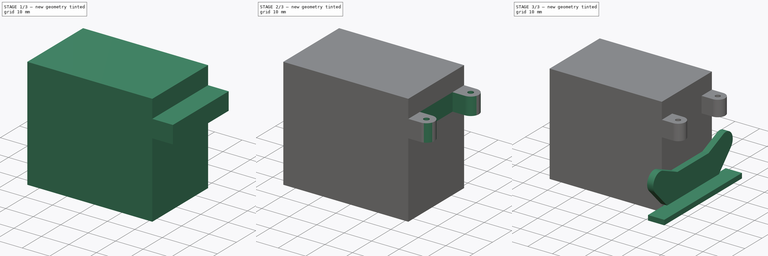
[diagram: build sequence overview — one tinted view per stage of 3, left to right]
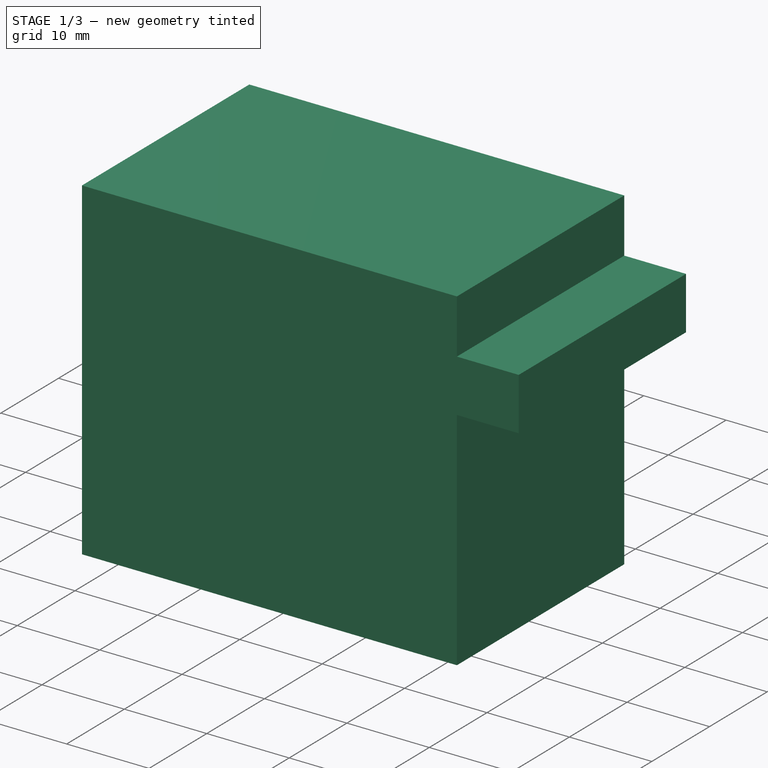
[diagram: stage 1 of 3 — iso view after this stage's code; geometry added in this stage tinted green]
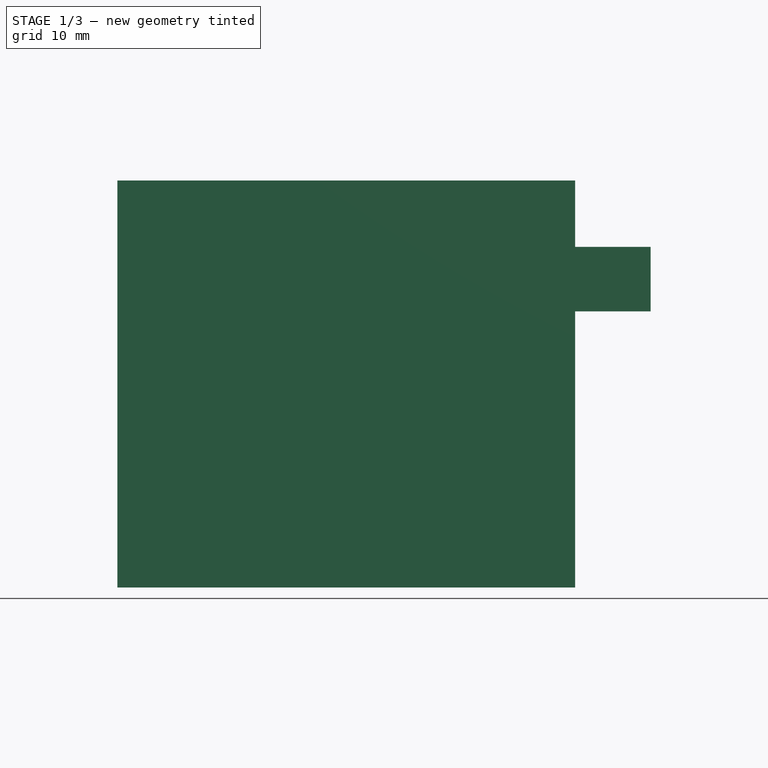
[diagram: stage 1 of 3 — front view after this stage's code; geometry added in this stage tinted green]
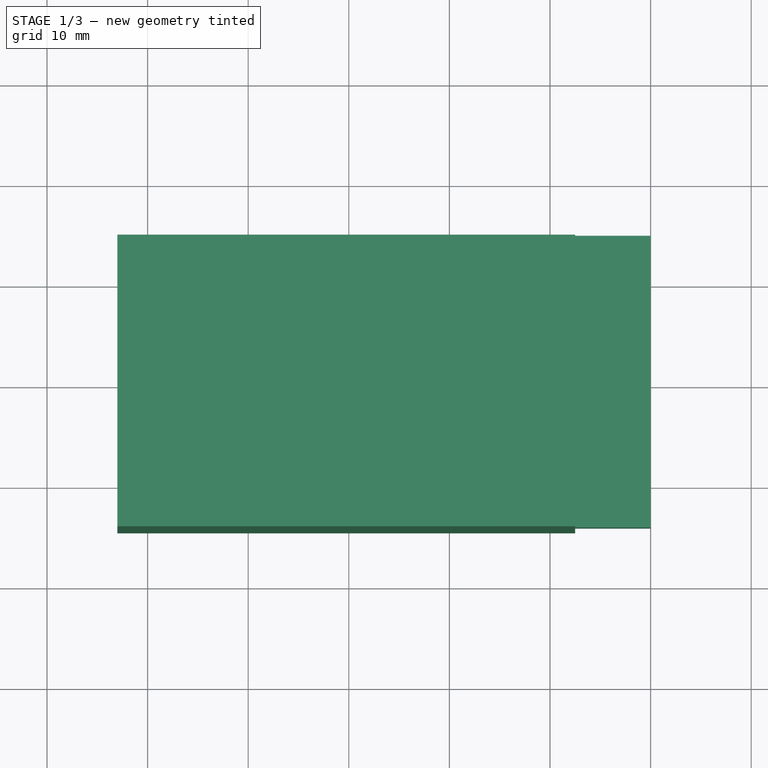
[diagram: stage 1 of 3 — top view after this stage's code; geometry added in this stage tinted green]
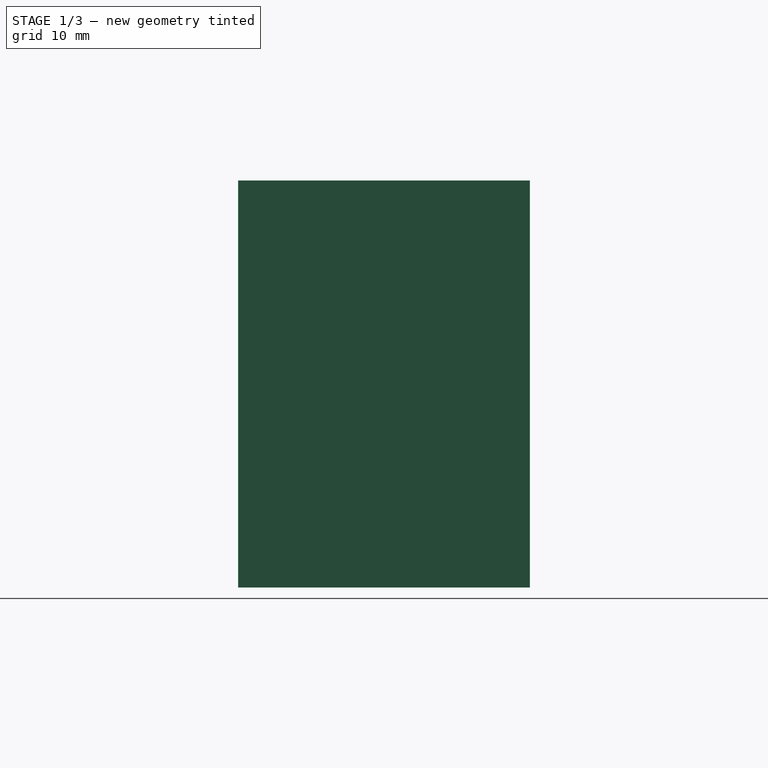
[diagram: stage 1 of 3 — right view after this stage's code; geometry added in this stage tinted green]
FCSTD DOCUMENT  (FreeCAD 0.15R4671 (Git))
Label: getriebeblock
License: All rights reserved
LicenseURL: http://en.wikipedia.org/wiki/All_rights_reserved
objects: Sketcher::SketchObject×5, PartDesign::Pad×3, PartDesign::Pocket×2
note: 15 computed .brp shape members not serialized (recipe doc carries the construction recipe); baked Part::Feature solids carry a one-line shape summary decoded from their .brp

FEATURE [Sketcher::SketchObject] Sketch
  sketch-geometry (4):
    g0: LineSegment StartX=-53 StartY=14.5 StartZ=0 EndX=0 EndY=14.5 EndZ=0
    g1: LineSegment StartX=0 StartY=14.5 StartZ=0 EndX=0 EndY=-14.5 EndZ=0
    g2: LineSegment StartX=0 StartY=-14.5 StartZ=0 EndX=-53 EndY=-14.5 EndZ=0
    g3: LineSegment StartX=-53 StartY=-14.5 StartZ=0 EndX=-53 EndY=14.5 EndZ=0
  constraints (12):
    c: Coincident(g0,g1)
    c: Coincident(g1,g2)
    c: Coincident(g2,g3)
    c: Coincident(g3,g0)
    c: Horizontal(g0)
    c: Horizontal(g2)
    c: Vertical(g1)
    c: Vertical(g3)
    c: Distance(g3) = 29
    c: Symmetric(g0,g2,g-1)
    c: Distance(g0) = 53
    c: PointOnObject(g-1,g1)
FEATURE [PartDesign::Pad] Pad
  Length = 40.45
  Length2 = 100
  Sketch = -> Sketch
  Type = 0
FEATURE [Sketcher::SketchObject] Sketch001
  ExternalGeometry = -> [Pad]
  Placement = pos=(0,0,0) rot=(0.57735,0.57735,0.57735;2.0944rad)
  Support = -> Pad [Face2]
  sketch-geometry (8):
    g0: LineSegment StartX=-14.5 StartY=40.45 StartZ=0 EndX=14.5 EndY=40.45 EndZ=0
    g1: LineSegment StartX=14.5 StartY=40.45 StartZ=0 EndX=14.5 EndY=33.85 EndZ=0
    g2: LineSegment StartX=14.5 StartY=33.85 StartZ=0 EndX=-14.5 EndY=33.85 EndZ=0
    g3: LineSegment StartX=-14.5 StartY=33.85 StartZ=0 EndX=-14.5 EndY=40.45 EndZ=0
    g4: LineSegment StartX=-14.5 StartY=27.45 StartZ=0 EndX=14.5 EndY=27.45 EndZ=0
    g5: LineSegment StartX=14.5 StartY=27.45 StartZ=0 EndX=14.5 EndY=0 EndZ=0
    g6: LineSegment StartX=14.5 StartY=0 StartZ=0 EndX=-14.5 EndY=0 EndZ=0
    g7: LineSegment StartX=-14.5 StartY=0 StartZ=0 EndX=-14.5 EndY=27.45 EndZ=0
  constraints (21):
    c: Coincident(g0,g1)
    c: Coincident(g1,g2)
    c: Coincident(g2,g3)
    c: Coincident(g3,g0)
    c: Horizontal(g0)
    c: Horizontal(g2)
    c: Vertical(g1)
    c: Vertical(g3)
    c: Coincident(g0,g-3)
    c: Coincident(g0,g-4)
    c: Distance(g1) = 6.6
    c: Coincident(g4,g5)
    c: Coincident(g5,g6)
    c: Coincident(g6,g7)
    c: Coincident(g7,g4)
    c: Horizontal(g4)
    c: Horizontal(g6)
    c: Vertical(g5)
    c: Vertical(g7)
    c: DistanceY(g4,g5) = -27.45
    c: Coincident(g-5,g6)
FEATURE [PartDesign::Pocket] Pocket
  Length = 7.5
  Sketch = -> Sketch001
  Type = 0
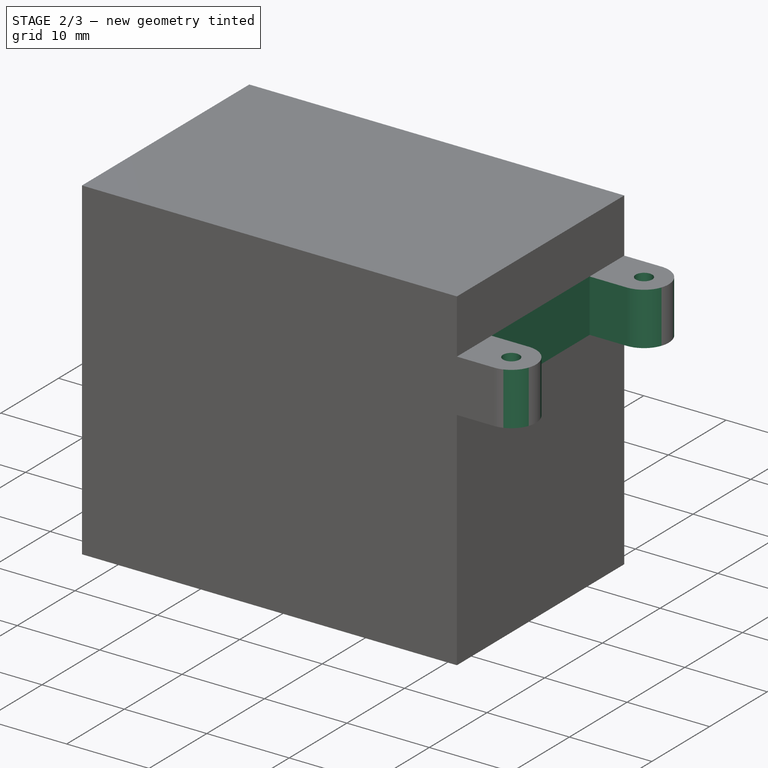
[diagram: stage 2 of 3 — iso view after this stage's code; geometry added in this stage tinted green]
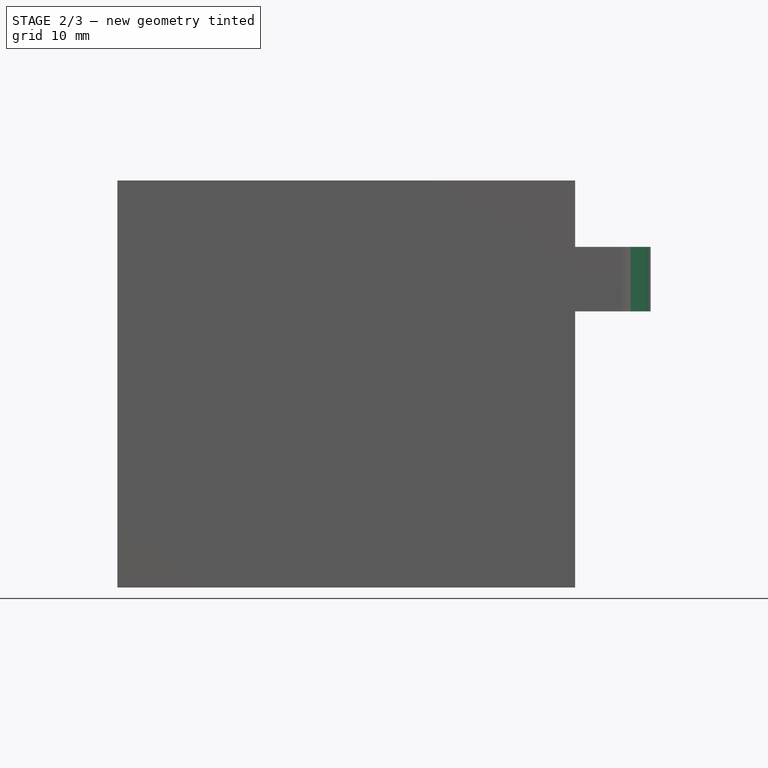
[diagram: stage 2 of 3 — front view after this stage's code; geometry added in this stage tinted green]
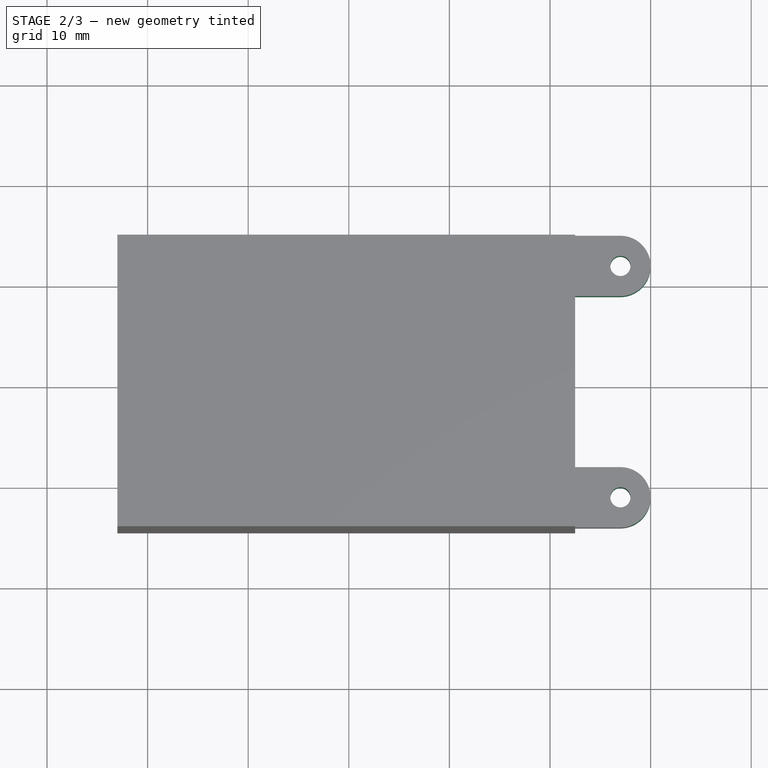
[diagram: stage 2 of 3 — top view after this stage's code; geometry added in this stage tinted green]
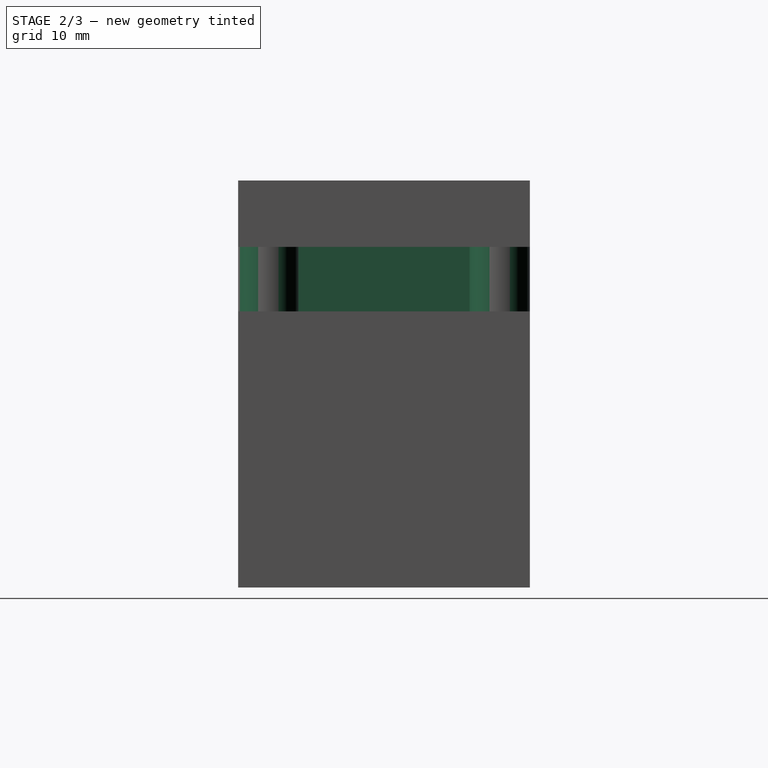
[diagram: stage 2 of 3 — right view after this stage's code; geometry added in this stage tinted green]
FEATURE [Sketcher::SketchObject] Sketch002
  ExternalGeometry = -> [Pocket]
  Placement = pos=(0,0,33.85) rot=(0,0,1;0rad)
  Support = -> Pocket [Face6]
  sketch-geometry (10):
    g0: LineSegment StartX=-3 StartY=8.5 StartZ=0 EndX=-7.5 EndY=8.5 EndZ=0
    g1: LineSegment StartX=-7.5 StartY=8.5 StartZ=0 EndX=-7.5 EndY=-8.5 EndZ=0
    g2: LineSegment StartX=-7.5 StartY=-8.5 StartZ=0 EndX=-3 EndY=-8.5 EndZ=0
    g3: ArcOfCircle CenterX=-3 CenterY=-11.5 CenterZ=0 NormalX=0 NormalY=0 NormalZ=1 Radius=3 StartAngle=4.71239 EndAngle=7.85398
    g4: LineSegment StartX=-3 StartY=-14.5 StartZ=0 EndX=2 EndY=-14.5 EndZ=0
    g5: LineSegment StartX=2 StartY=-14.5 StartZ=0 EndX=2 EndY=14.5 EndZ=0
    g6: LineSegment StartX=2 StartY=14.5 StartZ=0 EndX=-3 EndY=14.5 EndZ=0
    g7: ArcOfCircle CenterX=-3 CenterY=11.5 CenterZ=0 NormalX=0 NormalY=0 NormalZ=1 Radius=3 StartAngle=4.71239 EndAngle=7.85398
    g8: Circle CenterX=-3 CenterY=-11.5 CenterZ=0 NormalX=0 NormalY=0 NormalZ=1 Radius=1
    g9: Circle CenterX=-3 CenterY=11.5 CenterZ=0 NormalX=0 NormalY=0 NormalZ=1 Radius=1
  constraints (30):
    c: Coincident(g0,g1)
    c: Coincident(g1,g2)
    c: Horizontal(g0)
    c: Horizontal(g2)
    c: Vertical(g1)
    c: Radius(g3) = 3
    c: Symmetric(g3,g3,g3)
    c: Coincident(g4,g5)
    c: Coincident(g5,g6)
    c: Coincident(g4,g3)
    c: Coincident(g3,g2)
    c: Symmetric(g7,g7,g7)
    c: Radius(g7) = 3
    c: Coincident(g7,g6)
    c: Coincident(g7,g0)
    c: Horizontal(g6)
    c: Vertical(g5)
    c: Horizontal(g4)
    c: DistanceX(g4) = 5
    c: Equal(g6,g4)
    c: Equal(g2,g0)
    c: PointOnObject(g0,g-5)
    c: Symmetric(g0,g1,g-1)
    c: PointOnObject(g-6,g6)
    c: DistanceX(g-6,g5) = 2
    c: DistanceX(g0) = -4.5
    c: Radius(g9) = 1
    c: Coincident(g7,g9)
    c: Radius(g8) = 1
    c: Coincident(g3,g8)
FEATURE [PartDesign::Pocket] Pocket001
  Length = 6.5
  Sketch = -> Sketch002
  Type = 0
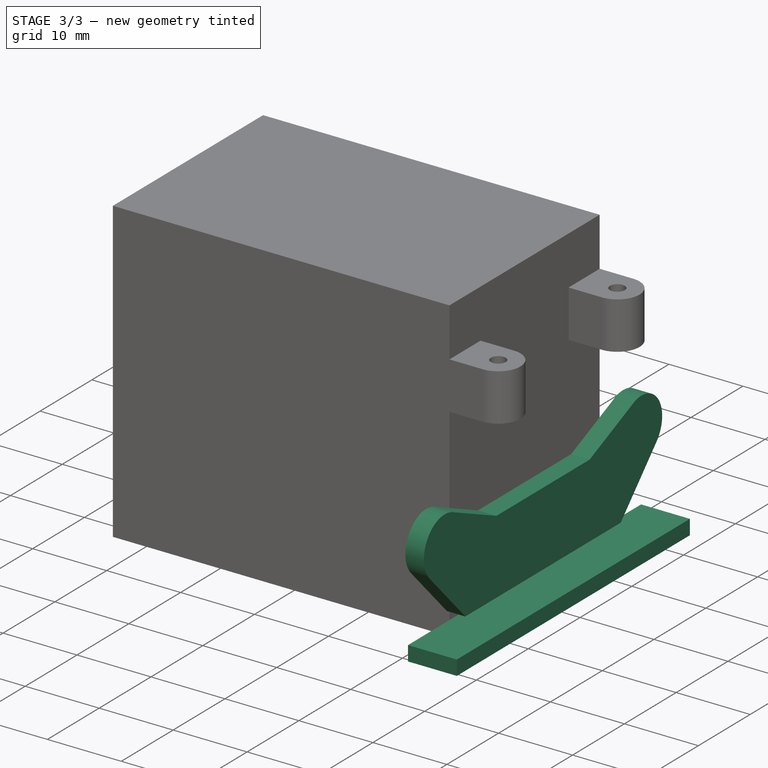
[diagram: stage 3 of 3 — iso view after this stage's code; geometry added in this stage tinted green]
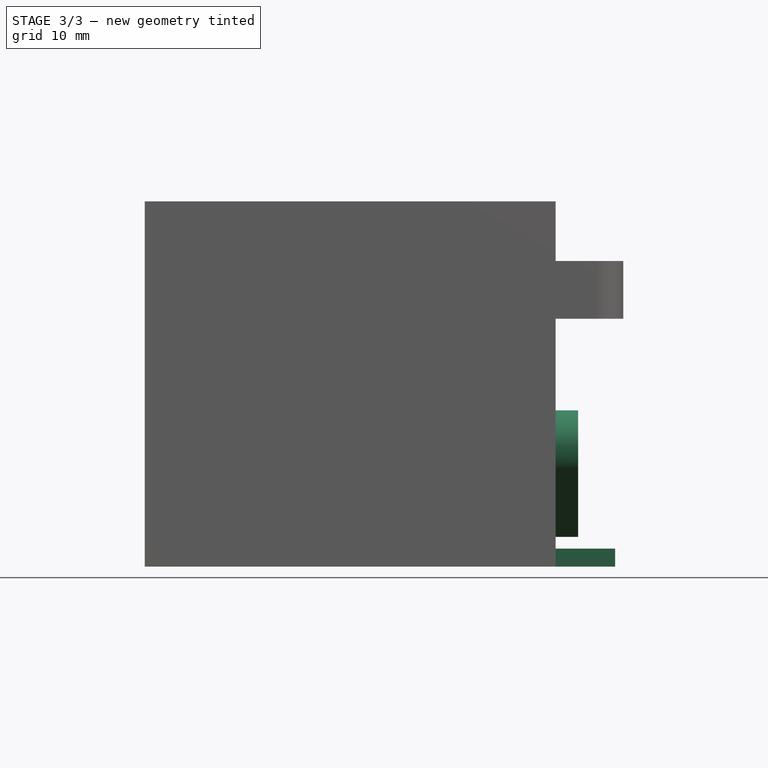
[diagram: stage 3 of 3 — front view after this stage's code; geometry added in this stage tinted green]
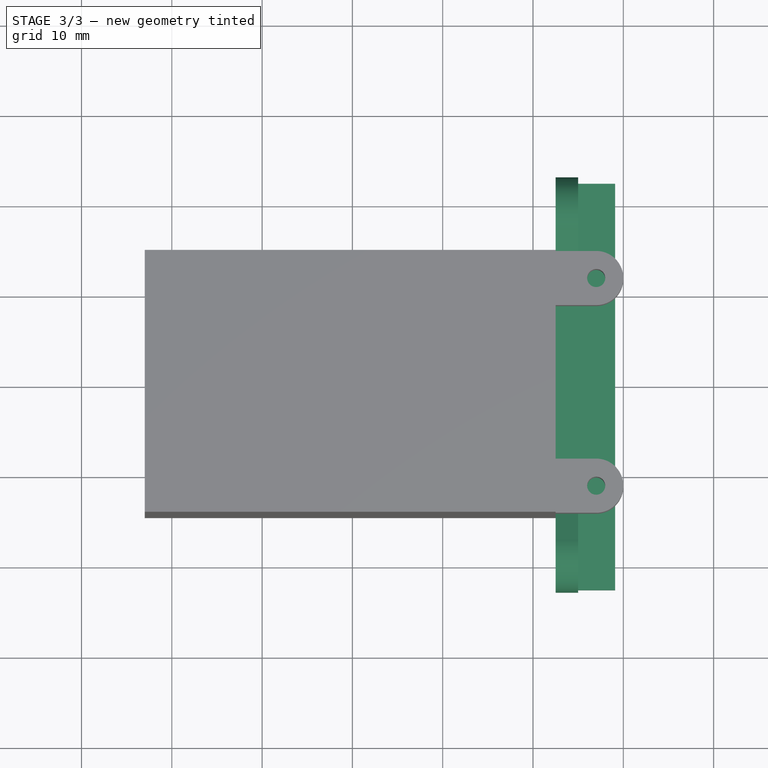
[diagram: stage 3 of 3 — top view after this stage's code; geometry added in this stage tinted green]
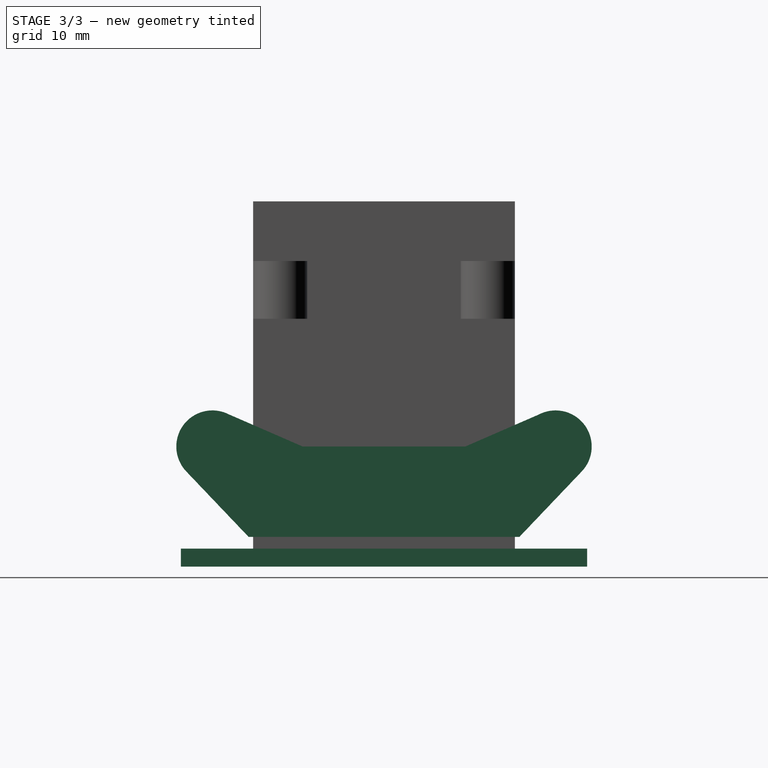
[diagram: stage 3 of 3 — right view after this stage's code; geometry added in this stage tinted green]
FEATURE [Sketcher::SketchObject] Sketch003
  Placement = pos=(-7.5,0,0) rot=(0.57735,0.57735,0.57735;2.0944rad)
  Support = -> Pocket001 [Face3]
  sketch-geometry (8):
    g0: LineSegment StartX=-21.8966 StartY=10.5414 StartZ=0 EndX=-15 EndY=3.3 EndZ=0
    g1: LineSegment StartX=-15 StartY=3.3 StartZ=0 EndX=15 EndY=3.3 EndZ=0
    g2: LineSegment StartX=15 StartY=3.3 StartZ=0 EndX=21.8966 EndY=10.5414 EndZ=0
    g3: LineSegment StartX=-17.1671 StartY=16.8554 StartZ=0 EndX=-9 EndY=13.3 EndZ=0
    g4: LineSegment StartX=-9 StartY=13.3 StartZ=0 EndX=9 EndY=13.3 EndZ=0
    g5: LineSegment StartX=9 StartY=13.3 StartZ=0 EndX=17.1671 EndY=16.8554 EndZ=0
    g6: ArcOfCircle CenterX=-19 CenterY=13.3 CenterZ=0 NormalX=0 NormalY=0 NormalZ=1 Radius=4 StartAngle=1.09481 EndAngle=3.90261
    g7: ArcOfCircle CenterX=19 CenterY=13.3 CenterZ=0 NormalX=0 NormalY=0 NormalZ=1 Radius=4 StartAngle=5.52217 EndAngle=8.32997
  constraints (25):
    c: Coincident(g0,g1)
    c: Coincident(g1,g2)
    c: Coincident(g3,g4)
    c: Coincident(g4,g5)
    c: Radius(g6) = 4
    c: Coincident(g6,g0)
    c: Horizontal(g4)
    c: DistanceY(g3,g0) = -10
    c: DistanceY(g6,g0) = -10
    c: Coincident(g6,g3)
    c: Radius(g7) = 4
    c: Coincident(g7,g2)
    c: Coincident(g7,g5)
    c: DistanceY(g7,g1) = -10
    c: DistanceX(g7,g6) = -38
    c: Symmetric(g3,g4,g-2)
    c: Symmetric(g7,g6,g-2)
    c: Equal(g2,g0)
    c: Equal(g5,g3)
    c: Distance(g2) = 10
    c: DistanceX(g4) = 18
    c: DistanceX(g1,g0) = -30
    c: Distance(g5,g4) = 8.90744
    c: Symmetric(g0,g1,g-2)
    c: DistanceY(g-1,g1) = 3.3
FEATURE [PartDesign::Pad] Pad001
  Length = 2.5
  Length2 = 100
  Sketch = -> Sketch003
  Type = 0
FEATURE [Sketcher::SketchObject] Sketch004
  Placement = pos=(-7.5,0,0) rot=(0.57735,0.57735,0.57735;2.0944rad)
  Support = -> Pad001 [Face3]
  sketch-geometry (4):
    g0: LineSegment StartX=-22.5 StartY=2 StartZ=0 EndX=22.5 EndY=2 EndZ=0
    g1: LineSegment StartX=22.5 StartY=2 StartZ=0 EndX=22.5 EndY=0 EndZ=0
    g2: LineSegment StartX=22.5 StartY=0 StartZ=0 EndX=-22.5 EndY=0 EndZ=0
    g3: LineSegment StartX=-22.5 StartY=0 StartZ=0 EndX=-22.5 EndY=2 EndZ=0
  constraints (12):
    c: Coincident(g0,g1)
    c: Coincident(g1,g2)
    c: Coincident(g2,g3)
    c: Coincident(g3,g0)
    c: Horizontal(g0)
    c: Horizontal(g2)
    c: Vertical(g1)
    c: Vertical(g3)
    c: PointOnObject(g2,g-1)
    c: DistanceY(g3) = 2
    c: DistanceX(g2) = -45
    c: Symmetric(g2,g1,g-2)
FEATURE [PartDesign::Pad] Pad002
  Length = 6.6
  Length2 = 100
  Sketch = -> Sketch004
  Type = 0
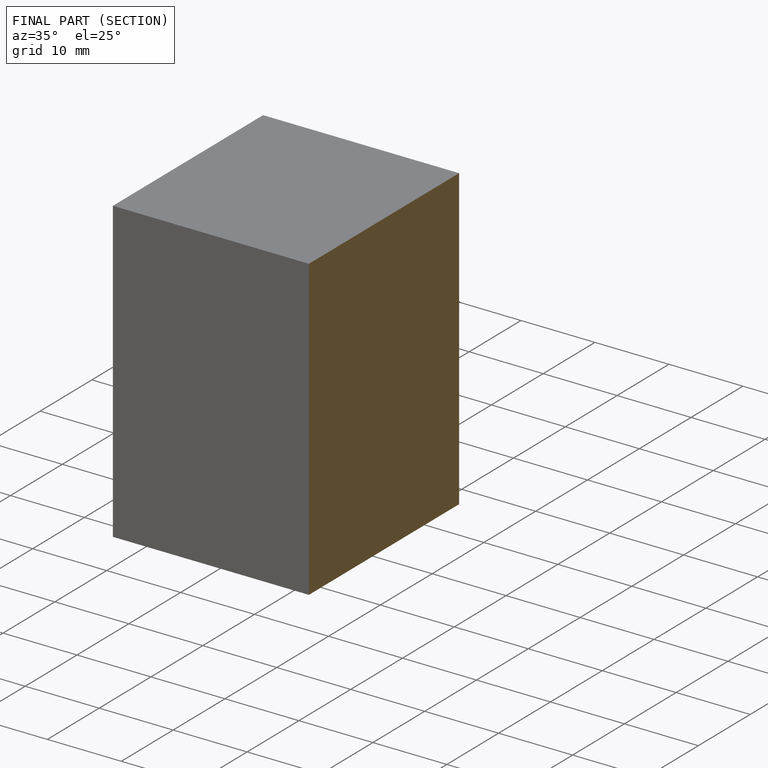
[diagram: finished part — half-section view (interior)]
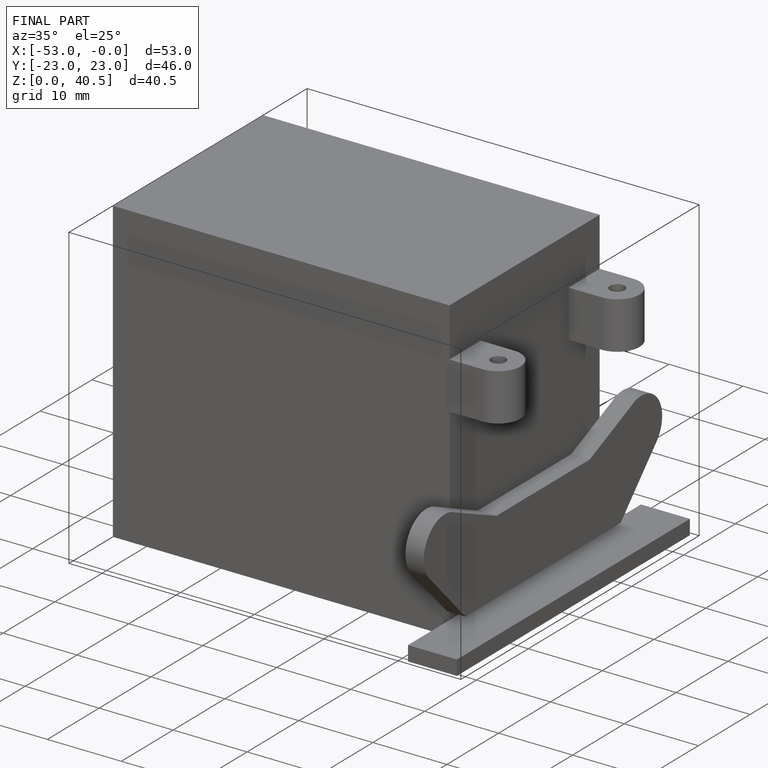
[diagram: finished part — iso view with bounding-box wireframe]
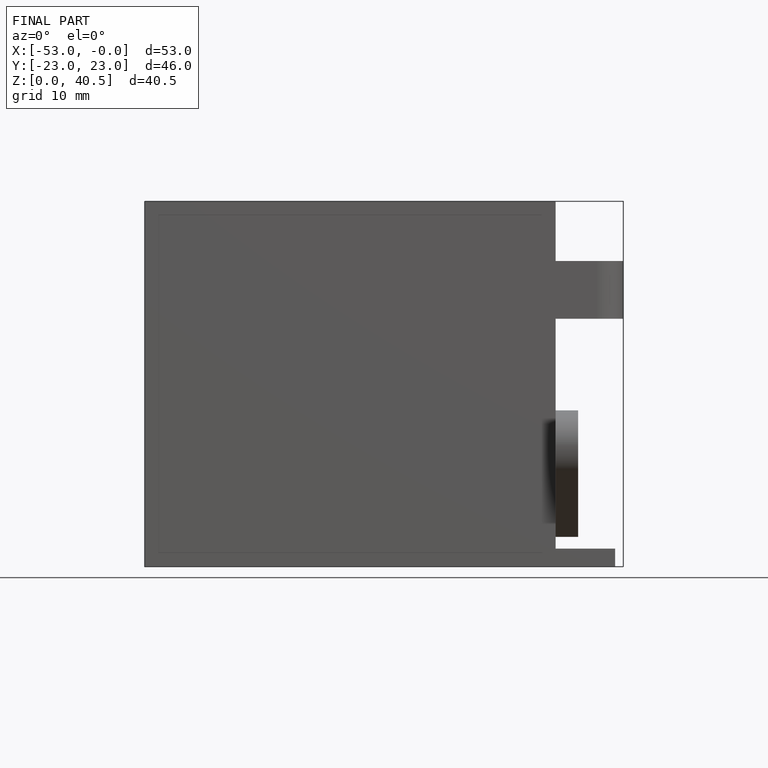
[diagram: finished part — front view with bounding-box wireframe]
